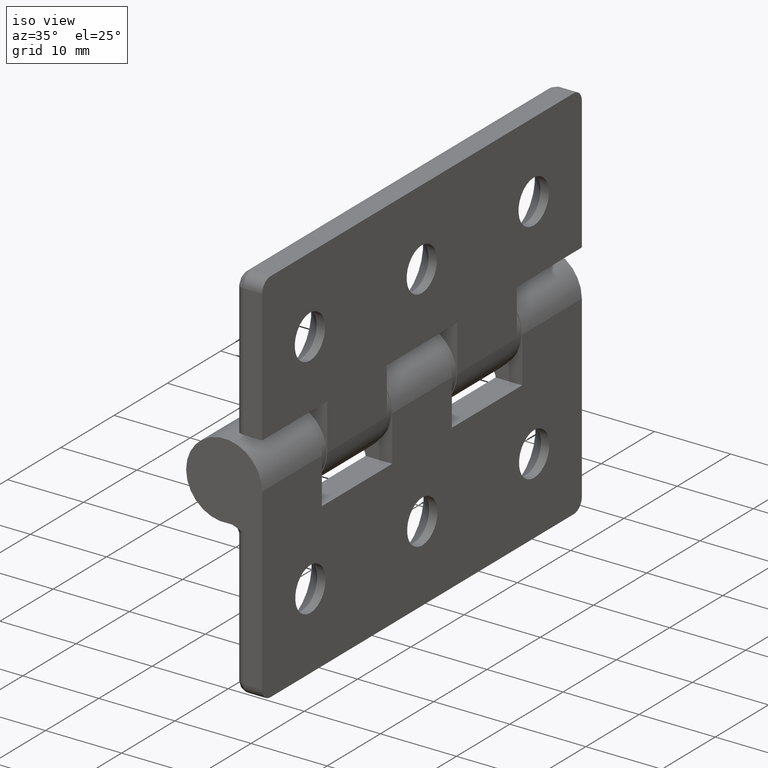
[diagram: clean part render]
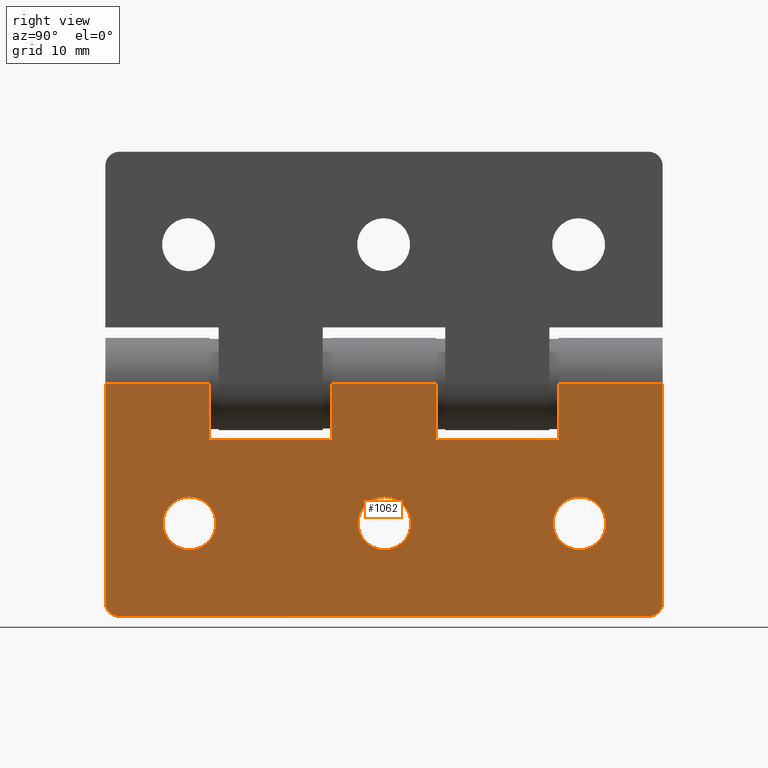
[diagram: tour spotlight — one face highlighted and labeled with its STEP entity id]
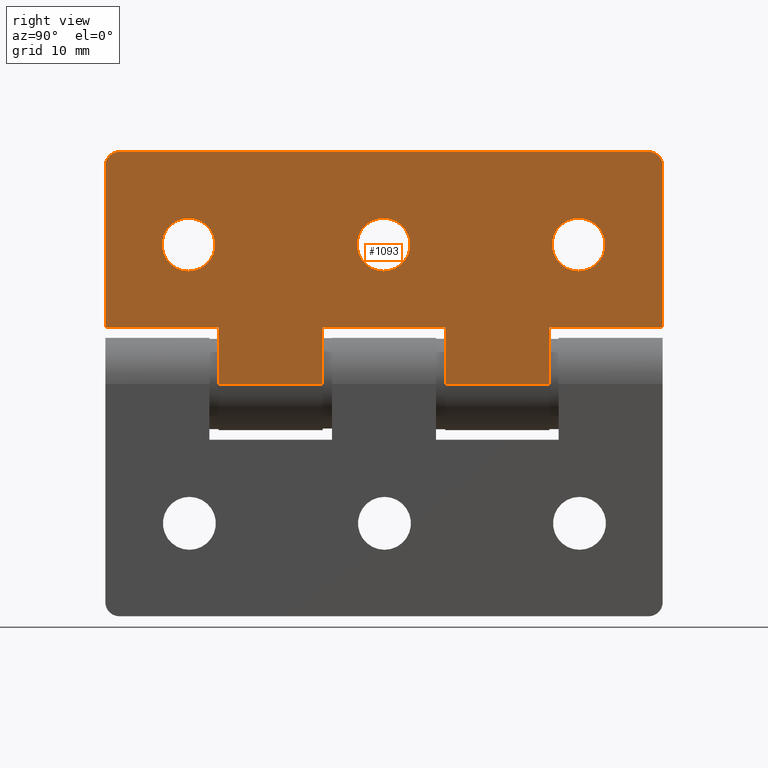
[diagram: tour spotlight — one face highlighted and labeled with its STEP entity id]
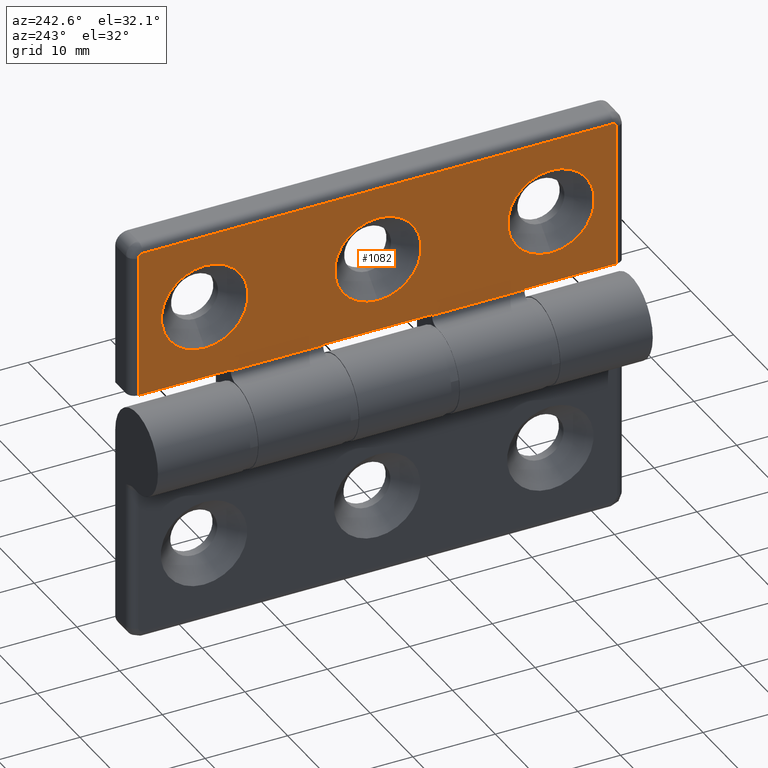
[diagram: tour spotlight — one face highlighted and labeled with its STEP entity id]
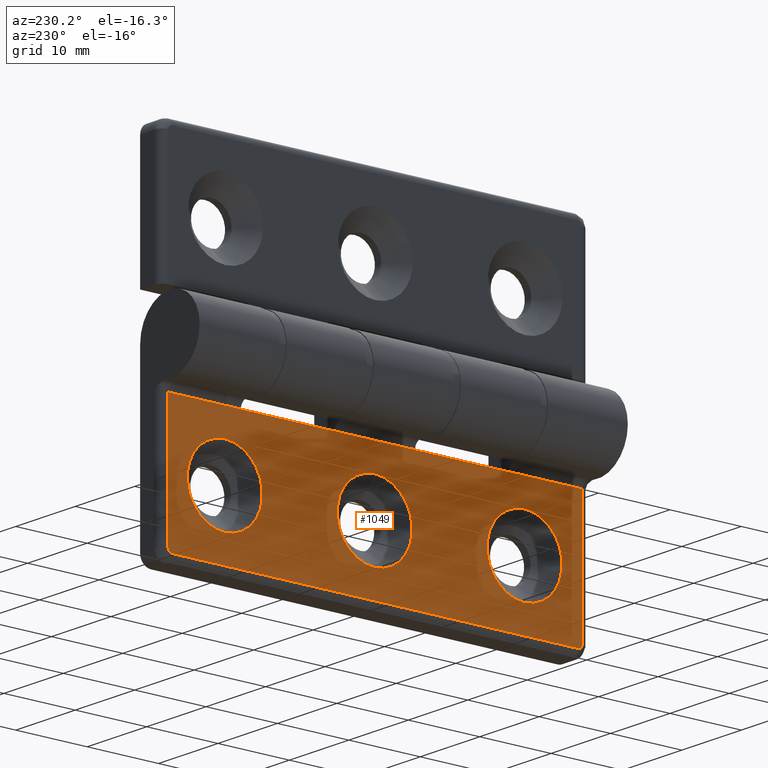
[diagram: tour spotlight — one face highlighted and labeled with its STEP entity id]
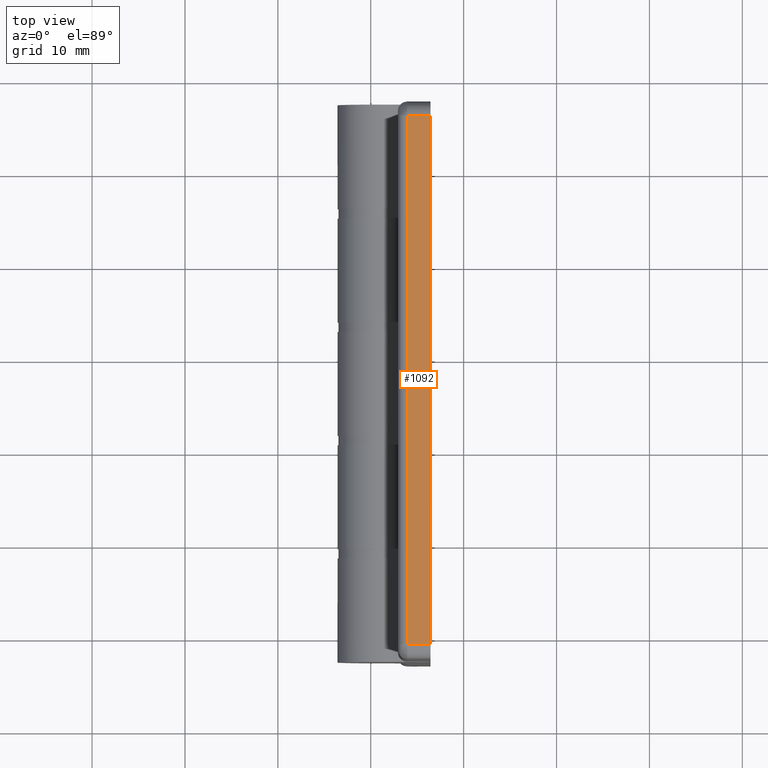
[diagram: tour spotlight — one face highlighted and labeled with its STEP entity id]
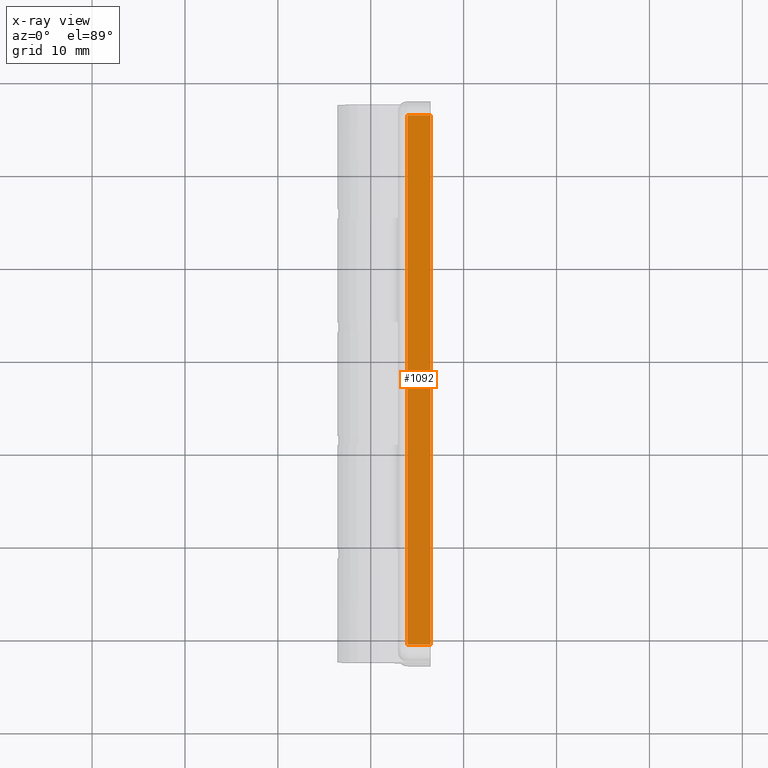
[diagram: x-ray of the same camera — body ghosted, this tour face saturated]
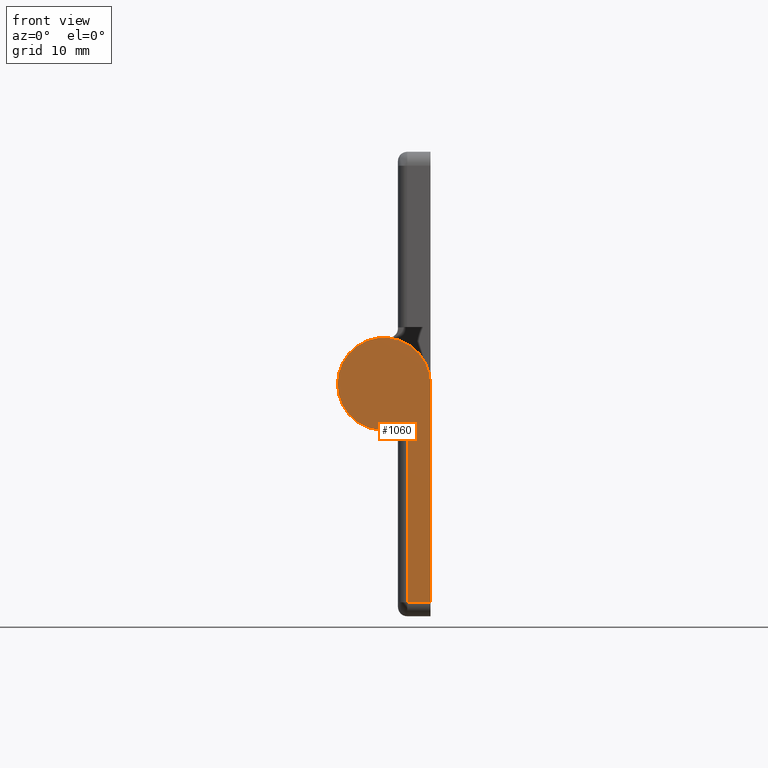
[diagram: tour spotlight — one face highlighted and labeled with its STEP entity id]
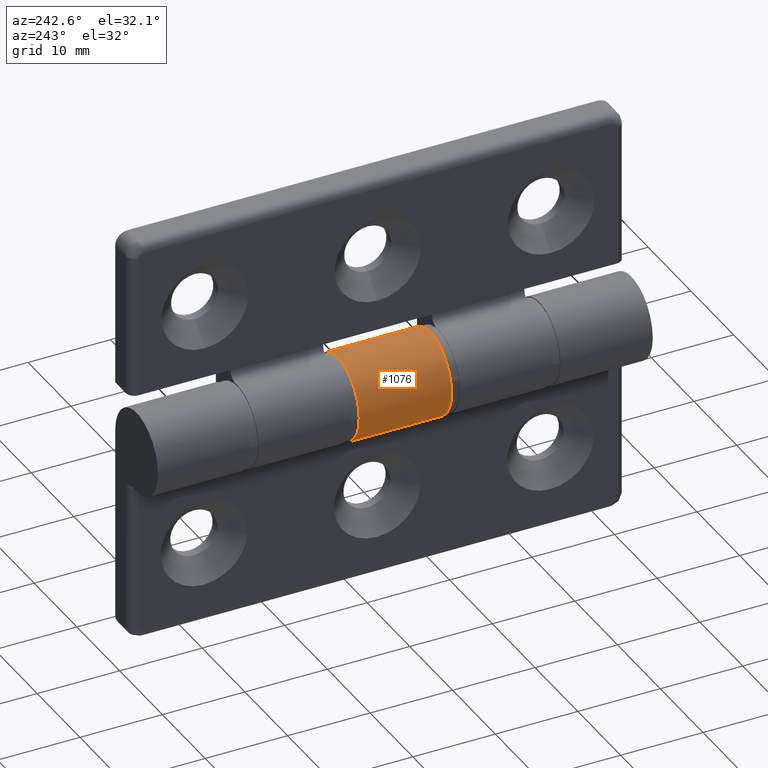
[diagram: tour spotlight — one face highlighted and labeled with its STEP entity id]
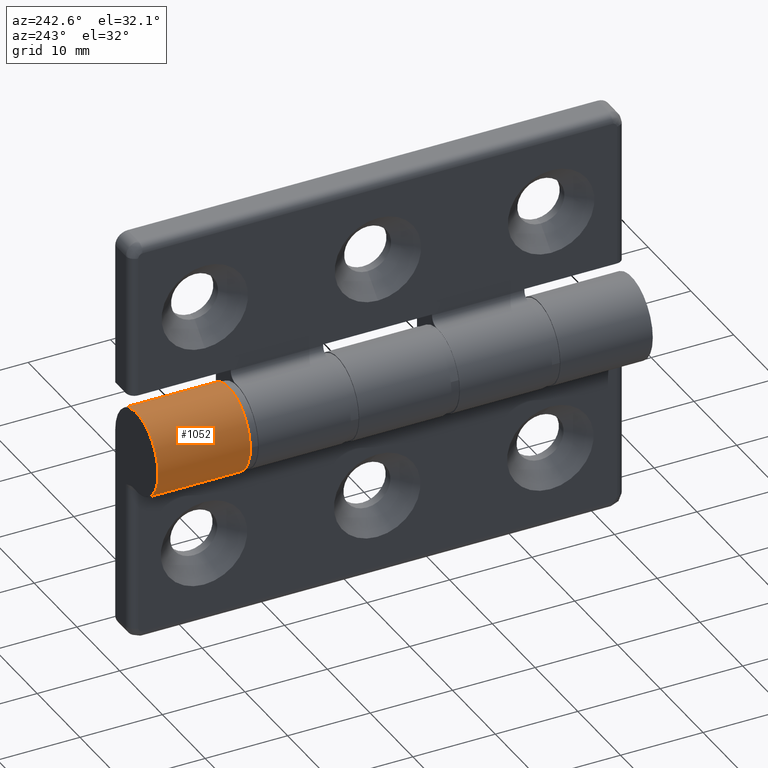
[diagram: tour spotlight — one face highlighted and labeled with its STEP entity id]
A machine part: a face-by-face anatomy tour. The part has 73 B-rep faces; the first image is the clean iso view, then the 8 largest visible faces are spotlighted one at a time (largest first), each with its STEP entity span.

Face 1 — right view, entity #1062. In plain terms, the highlighted planar face has unit normal (1, 0, -0).
Definition (entity closure, byte-faithful):
#60=FACE_BOUND('',#199,.T.);
#61=FACE_BOUND('',#200,.T.);
#62=FACE_BOUND('',#201,.T.);
#85=PLANE('',#1148);
#131=FACE_OUTER_BOUND('',#198,.T.);
#198=EDGE_LOOP('',(#808,#809,#810,#811,#812,#813,#814,#815,#816,#817,#818,
#819,#820,#821));
#199=EDGE_LOOP('',(#822));
#200=EDGE_LOOP('',(#823));
#201=EDGE_LOOP('',(#824));
#283=LINE('',#1757,#360);
#291=LINE('',#1809,#368);
#292=LINE('',#1812,#369);
#293=LINE('',#1814,#370);
#294=LINE('',#1816,#371);
#295=LINE('',#1818,#372);
#296=LINE('',#1820,#373);
#297=LINE('',#1822,#374);
#298=LINE('',#1824,#375);
#299=LINE('',#1826,#376);
#300=LINE('',#1828,#377);
#301=LINE('',#1829,#378);
#360=VECTOR('',#1292,11.2);
#368=VECTOR('',#1332,23.5);
#369=VECTOR('',#1337,57.);
#370=VECTOR('',#1340,23.5);
#371=VECTOR('',#1341,5.99999999999998);
#372=VECTOR('',#1342,13.2);
#373=VECTOR('',#1343,5.99999999999998);
#374=VECTOR('',#1344,11.2);
#375=VECTOR('',#1345,5.99999999999999);
#376=VECTOR('',#1346,13.2);
#377=VECTOR('',#1347,5.99999999999999);
#378=VECTOR('',#1348,11.2);
#438=CIRCLE('',#1137,1.5);
#442=CIRCLE('',#1144,1.5);
#444=CIRCLE('',#1149,2.85);
#445=CIRCLE('',#1150,2.85);
#446=CIRCLE('',#1151,2.85);
#510=VERTEX_POINT('',#1754);
#511=VERTEX_POINT('',#1756);
#515=VERTEX_POINT('',#1778);
#516=VERTEX_POINT('',#1779);
#519=VERTEX_POINT('',#1802);
#520=VERTEX_POINT('',#1803);
#521=VERTEX_POINT('',#1808);
#522=VERTEX_POINT('',#1815);
#523=VERTEX_POINT('',#1817);
#524=VERTEX_POINT('',#1819);
#525=VERTEX_POINT('',#1821);
#526=VERTEX_POINT('',#1823);
#527=VERTEX_POINT('',#1825);
#528=VERTEX_POINT('',#1827);
#529=VERTEX_POINT('',#1830);
#530=VERTEX_POINT('',#1832);
#531=VERTEX_POINT('',#1834);
#616=EDGE_CURVE('',#510,#511,#283,.T.);
#623=EDGE_CURVE('',#515,#516,#438,.T.);
#631=EDGE_CURVE('',#519,#520,#442,.T.);
#634=EDGE_CURVE('',#521,#516,#291,.T.);
#636=EDGE_CURVE('',#515,#520,#292,.T.);
#637=EDGE_CURVE('',#511,#519,#293,.T.);
#638=EDGE_CURVE('',#510,#522,#294,.T.);
#639=EDGE_CURVE('',#522,#523,#295,.T.);
#640=EDGE_CURVE('',#523,#524,#296,.T.);
#641=EDGE_CURVE('',#525,#524,#297,.T.);
#642=EDGE_CURVE('',#525,#526,#298,.T.);
#643=EDGE_CURVE('',#526,#527,#299,.T.);
#644=EDGE_CURVE('',#527,#528,#300,.T.);
#645=EDGE_CURVE('',#521,#528,#301,.T.);
#646=EDGE_CURVE('',#529,#529,#444,.T.);
#647=EDGE_CURVE('',#530,#530,#445,.T.);
#648=EDGE_CURVE('',#531,#531,#446,.T.);
#808=ORIENTED_EDGE('',*,*,#623,.F.);
#809=ORIENTED_EDGE('',*,*,#636,.T.);
#810=ORIENTED_EDGE('',*,*,#631,.F.);
#811=ORIENTED_EDGE('',*,*,#637,.F.);
#812=ORIENTED_EDGE('',*,*,#616,.F.);
#813=ORIENTED_EDGE('',*,*,#638,.T.);
#814=ORIENTED_EDGE('',*,*,#639,.T.);
#815=ORIENTED_EDGE('',*,*,#640,.T.);
#816=ORIENTED_EDGE('',*,*,#641,.F.);
#817=ORIENTED_EDGE('',*,*,#642,.T.);
#818=ORIENTED_EDGE('',*,*,#643,.T.);
#819=ORIENTED_EDGE('',*,*,#644,.T.);
#820=ORIENTED_EDGE('',*,*,#645,.F.);
#821=ORIENTED_EDGE('',*,*,#634,.T.);
#822=ORIENTED_EDGE('',*,*,#646,.T.);
#823=ORIENTED_EDGE('',*,*,#647,.T.);
#824=ORIENTED_EDGE('',*,*,#648,.T.);
#1062=ADVANCED_FACE('',(#131,#60,#61,#62),#85,.T.);
#1137=AXIS2_PLACEMENT_3D('',#1780,#1308,#1309);
#1144=AXIS2_PLACEMENT_3D('',#1804,#1326,#1327);
#1148=AXIS2_PLACEMENT_3D('',#1813,#1338,#1339);
#1149=AXIS2_PLACEMENT_3D('',#1831,#1349,#1350);
#1150=AXIS2_PLACEMENT_3D('',#1833,#1351,#1352);
#1151=AXIS2_PLACEMENT_3D('',#1835,#1353,#1354);
#1292=DIRECTION('',(0.,1.,0.));
#1308=DIRECTION('center_axis',(-1.,0.,4.88498130835069E-16));
#1309=DIRECTION('ref_axis',(0.,-0.707106781186549,-0.707106781186546));
#1326=DIRECTION('center_axis',(-1.,0.,4.88498130835069E-16));
#1327=DIRECTION('ref_axis',(0.,0.70710678118655,-0.707106781186545));
#1332=DIRECTION('',(-4.88498130835069E-16,0.,-1.));
#1337=DIRECTION('',(0.,1.,0.));
#1338=DIRECTION('center_axis',(1.,0.,-4.88498130835069E-16));
#1339=DIRECTION('ref_axis',(-5.32907051820075E-16,0.,-1.));
#1340=DIRECTION('',(-4.88498130835069E-16,0.,-1.));
#1341=DIRECTION('',(-4.88498130835069E-16,0.,-1.));
#1342=DIRECTION('',(0.,-1.,0.));
#1343=DIRECTION('',(4.88498130835069E-16,0.,1.));
#1344=DIRECTION('',(0.,1.,0.));
#1345=DIRECTION('',(-4.88498130835069E-16,1.26306652853828E-16,-1.));
#1346=DIRECTION('',(0.,-1.,0.));
#1347=DIRECTION('',(4.88498130835069E-16,-1.26306652853828E-16,1.));
#1348=DIRECTION('',(0.,1.,0.));
#1349=DIRECTION('center_axis',(-1.,0.,4.88498130835069E-16));
#1350=DIRECTION('ref_axis',(5.87376257845724E-16,0.,1.));
#1351=DIRECTION('center_axis',(-1.,0.,4.88498130835069E-16));
#1352=DIRECTION('ref_axis',(5.87376257845724E-16,0.,1.));
#1353=DIRECTION('center_axis',(-1.,0.,4.88498130835069E-16));
#1354=DIRECTION('ref_axis',(5.87376257845724E-16,0.,1.));
#1754=CARTESIAN_POINT('',(5.,48.8,-2.44249065417534E-15));
#1756=CARTESIAN_POINT('',(5.,60.,-1.66533453693773E-15));
#1757=CARTESIAN_POINT('',(5.,0.,-2.44249065417534E-15));
#1778=CARTESIAN_POINT('',(4.99999999999999,1.5,-25.));
#1779=CARTESIAN_POINT('',(4.99999999999999,0.,-23.5));
#1780=CARTESIAN_POINT('Origin',(5.,1.5,-23.5));
#1802=CARTESIAN_POINT('',(4.99999999999999,60.,-23.5));
#1803=CARTESIAN_POINT('',(4.99999999999999,58.5,-25.));
#1804=CARTESIAN_POINT('Origin',(5.,58.5,-23.5));
#1808=CARTESIAN_POINT('',(5.,0.,-1.53080849893419E-15));
#1809=CARTESIAN_POINT('',(5.,0.,-1.53080849893419E-15));
#1812=CARTESIAN_POINT('',(4.99999999999999,0.,-25.));
#1813=CARTESIAN_POINT('Origin',(5.,0.,-1.53080849893419E-15));
#1814=CARTESIAN_POINT('',(5.,60.,-1.53080849893419E-15));
#1815=CARTESIAN_POINT('',(5.,48.8,-5.99999999999998));
#1816=CARTESIAN_POINT('',(5.00000000000001,48.8,14.5798027980362));
#1817=CARTESIAN_POINT('',(5.,35.6,-5.99999999999999));
#1818=CARTESIAN_POINT('',(5.,18.3,-5.99999999999999));
#1819=CARTESIAN_POINT('',(5.,35.6,-2.44249065417534E-15));
#1820=CARTESIAN_POINT('',(5.,35.6,-2.99999999999999));
#1821=CARTESIAN_POINT('',(5.,24.4,-2.44249065417534E-15));
#1822=CARTESIAN_POINT('',(5.,0.,-2.44249065417534E-15));
#1823=CARTESIAN_POINT('',(5.,24.4,-5.99999999999999));
#1824=CARTESIAN_POINT('',(5.00000000000001,24.4,14.5798027980362));
#1825=CARTESIAN_POINT('',(5.,11.2,-5.99999999999999));
#1826=CARTESIAN_POINT('',(5.,12.2,-5.99999999999999));
#1827=CARTESIAN_POINT('',(5.,11.2,-2.44249065417534E-15));
#1828=CARTESIAN_POINT('',(5.,11.2,-2.99999999999999));
#1829=CARTESIAN_POINT('',(5.,0.,-2.44249065417534E-15));
#1830=CARTESIAN_POINT('',(4.99999999999999,51.0456915695693,-17.85));
#1831=CARTESIAN_POINT('Origin',(4.99999999999999,51.0456915695693,-15.));
#1832=CARTESIAN_POINT('',(4.99999999999999,9.05,-17.85));
#1833=CARTESIAN_POINT('Origin',(4.99999999999999,9.05,-15.));
#1834=CARTESIAN_POINT('',(4.99999999999999,30.05,-17.85));
#1835=CARTESIAN_POINT('Origin',(4.99999999999999,30.05,-15.));

Face 2 — right view, entity #1093. In plain terms, the highlighted planar face has unit normal (1, -0, -0).
Definition (entity closure, byte-faithful):
#73=FACE_BOUND('',#243,.T.);
#74=FACE_BOUND('',#244,.T.);
#75=FACE_BOUND('',#245,.T.);
#97=PLANE('',#1211);
#162=FACE_OUTER_BOUND('',#242,.T.);
#242=EDGE_LOOP('',(#944,#945,#946,#947,#948,#949,#950,#951,#952,#953,#954,
#955,#956,#957));
#243=EDGE_LOOP('',(#958));
#244=EDGE_LOOP('',(#959));
#245=EDGE_LOOP('',(#960));
#320=LINE('',#1924,#397);
#328=LINE('',#1977,#405);
#329=LINE('',#1980,#406);
#330=LINE('',#1982,#407);
#331=LINE('',#1983,#408);
#332=LINE('',#1985,#409);
#333=LINE('',#1987,#410);
#334=LINE('',#1989,#411);
#335=LINE('',#1991,#412);
#336=LINE('',#1993,#413);
#337=LINE('',#1995,#414);
#338=LINE('',#1996,#415);
#397=VECTOR('',#1457,11.2);
#405=VECTOR('',#1499,57.);
#406=VECTOR('',#1502,17.4);
#407=VECTOR('',#1503,12.2);
#408=VECTOR('',#1504,6.1);
#409=VECTOR('',#1505,6.1);
#410=VECTOR('',#1506,13.2);
#411=VECTOR('',#1507,6.1);
#412=VECTOR('',#1508,11.2);
#413=VECTOR('',#1509,6.10000000000001);
#414=VECTOR('',#1510,12.2);
#415=VECTOR('',#1511,17.4);
#469=CIRCLE('',#1199,1.5);
#475=CIRCLE('',#1209,1.5);
#476=CIRCLE('',#1212,2.85);
#477=CIRCLE('',#1213,2.85);
#478=CIRCLE('',#1214,2.85);
#558=VERTEX_POINT('',#1921);
#559=VERTEX_POINT('',#1923);
#562=VERTEX_POINT('',#1941);
#563=VERTEX_POINT('',#1942);
#568=VERTEX_POINT('',#1971);
#569=VERTEX_POINT('',#1972);
#570=VERTEX_POINT('',#1979);
#571=VERTEX_POINT('',#1981);
#572=VERTEX_POINT('',#1984);
#573=VERTEX_POINT('',#1986);
#574=VERTEX_POINT('',#1988);
#575=VERTEX_POINT('',#1990);
#576=VERTEX_POINT('',#1992);
#577=VERTEX_POINT('',#1994);
#578=VERTEX_POINT('',#1997);
#579=VERTEX_POINT('',#1999);
#580=VERTEX_POINT('',#2001);
#685=EDGE_CURVE('',#558,#559,#320,.T.);
#690=EDGE_CURVE('',#562,#563,#469,.T.);
#701=EDGE_CURVE('',#568,#569,#475,.T.);
#704=EDGE_CURVE('',#562,#569,#328,.T.);
#705=EDGE_CURVE('',#570,#568,#329,.T.);
#706=EDGE_CURVE('',#570,#571,#330,.T.);
#707=EDGE_CURVE('',#571,#559,#331,.T.);
#708=EDGE_CURVE('',#558,#572,#332,.T.);
#709=EDGE_CURVE('',#572,#573,#333,.T.);
#710=EDGE_CURVE('',#573,#574,#334,.T.);
#711=EDGE_CURVE('',#575,#574,#335,.T.);
#712=EDGE_CURVE('',#575,#576,#336,.T.);
#713=EDGE_CURVE('',#576,#577,#337,.T.);
#714=EDGE_CURVE('',#577,#563,#338,.T.);
#715=EDGE_CURVE('',#578,#578,#476,.T.);
#716=EDGE_CURVE('',#579,#579,#477,.T.);
#717=EDGE_CURVE('',#580,#580,#478,.T.);
#944=ORIENTED_EDGE('',*,*,#690,.F.);
#945=ORIENTED_EDGE('',*,*,#704,.T.);
#946=ORIENTED_EDGE('',*,*,#701,.F.);
#947=ORIENTED_EDGE('',*,*,#705,.F.);
#948=ORIENTED_EDGE('',*,*,#706,.T.);
#949=ORIENTED_EDGE('',*,*,#707,.T.);
#950=ORIENTED_EDGE('',*,*,#685,.F.);
#951=ORIENTED_EDGE('',*,*,#708,.T.);
#952=ORIENTED_EDGE('',*,*,#709,.T.);
#953=ORIENTED_EDGE('',*,*,#710,.T.);
#954=ORIENTED_EDGE('',*,*,#711,.F.);
#955=ORIENTED_EDGE('',*,*,#712,.T.);
#956=ORIENTED_EDGE('',*,*,#713,.T.);
#957=ORIENTED_EDGE('',*,*,#714,.T.);
#958=ORIENTED_EDGE('',*,*,#715,.T.);
#959=ORIENTED_EDGE('',*,*,#716,.T.);
#960=ORIENTED_EDGE('',*,*,#717,.T.);
#1093=ADVANCED_FACE('',(#162,#73,#74,#75),#97,.T.);
#1199=AXIS2_PLACEMENT_3D('',#1943,#1468,#1469);
#1209=AXIS2_PLACEMENT_3D('',#1973,#1493,#1494);
#1211=AXIS2_PLACEMENT_3D('',#1978,#1500,#1501);
#1212=AXIS2_PLACEMENT_3D('',#1998,#1512,#1513);
#1213=AXIS2_PLACEMENT_3D('',#2000,#1514,#1515);
#1214=AXIS2_PLACEMENT_3D('',#2002,#1516,#1517);
#1457=DIRECTION('',(0.,1.,0.));
#1468=DIRECTION('center_axis',(-1.,0.,4.88498130835069E-16));
#1469=DIRECTION('ref_axis',(0.,-0.707106781186549,-0.707106781186546));
#1493=DIRECTION('center_axis',(-1.,0.,4.88498130835069E-16));
#1494=DIRECTION('ref_axis',(0.,0.70710678118655,-0.707106781186545));
#1499=DIRECTION('',(0.,1.,0.));
#1500=DIRECTION('center_axis',(1.,0.,-4.88498130835069E-16));
#1501=DIRECTION('ref_axis',(-5.32907051820075E-16,0.,-1.));
#1502=DIRECTION('',(-4.88498130835069E-16,0.,-1.));
#1503=DIRECTION('',(2.16936748935779E-30,-1.,4.44089209850064E-15));
#1504=DIRECTION('',(4.88498130835069E-16,0.,1.));
#1505=DIRECTION('',(-4.88498130835069E-16,-2.90621177825924E-16,-1.));
#1506=DIRECTION('',(4.33873497871558E-30,-1.,8.88178419700128E-15));
#1507=DIRECTION('',(4.88498130835069E-16,0.,1.));
#1508=DIRECTION('',(0.,1.,0.));
#1509=DIRECTION('',(-4.88498130835069E-16,1.45310588912962E-16,-1.));
#1510=DIRECTION('',(7.05044434041276E-30,-1.,1.4432899320127E-14));
#1511=DIRECTION('',(-4.88498130835069E-16,0.,-1.));
#1512=DIRECTION('center_axis',(-1.,0.,4.88498130835069E-16));
#1513=DIRECTION('ref_axis',(5.87376257845724E-16,2.71716102324369E-33,1.));
#1514=DIRECTION('center_axis',(-1.,0.,4.88498130835069E-16));
#1515=DIRECTION('ref_axis',(5.87376257845724E-16,2.71716102324369E-33,1.));
#1516=DIRECTION('center_axis',(-1.,0.,4.88498130835069E-16));
#1517=DIRECTION('ref_axis',(5.87376257845724E-16,2.71716102324369E-33,1.));
#1921=CARTESIAN_POINT('',(5.,36.6,-2.44249065417534E-15));
#1923=CARTESIAN_POINT('',(5.,47.8,-2.44249065417534E-15));
#1924=CARTESIAN_POINT('',(5.,0.,-2.44249065417534E-15));
#1941=CARTESIAN_POINT('',(4.99999999999999,1.5,-25.));
#1942=CARTESIAN_POINT('',(4.99999999999999,0.,-23.5));
#1943=CARTESIAN_POINT('Origin',(5.,1.5,-23.5));
#1971=CARTESIAN_POINT('',(4.99999999999999,60.,-23.5));
#1972=CARTESIAN_POINT('',(4.99999999999999,58.5,-25.));
#1973=CARTESIAN_POINT('Origin',(5.,58.5,-23.5));
#1977=CARTESIAN_POINT('',(4.99999999999999,0.,-25.));
#1978=CARTESIAN_POINT('Origin',(5.,0.,-1.53080849893419E-15));
#1979=CARTESIAN_POINT('',(5.,60.,-6.1));
#1980=CARTESIAN_POINT('',(5.,60.,-1.53080849893419E-15));
#1981=CARTESIAN_POINT('',(5.,47.8,-6.1));
#1982=CARTESIAN_POINT('',(5.,24.4,-6.09999999999989));
#1983=CARTESIAN_POINT('',(5.,47.8,-3.05));
#1984=CARTESIAN_POINT('',(5.,36.6,-6.1));
#1985=CARTESIAN_POINT('',(5.00000000000001,36.6,12.2306899060901));
#1986=CARTESIAN_POINT('',(5.,23.4,-6.1));
#1987=CARTESIAN_POINT('',(5.,12.2,-6.0999999999999));
#1988=CARTESIAN_POINT('',(5.,23.4,-2.44249065417534E-15));
#1989=CARTESIAN_POINT('',(5.,23.4,-3.05));
#1990=CARTESIAN_POINT('',(5.,12.2,-2.44249065417534E-15));
#1991=CARTESIAN_POINT('',(5.,0.,-2.44249065417534E-15));
#1992=CARTESIAN_POINT('',(5.,12.2,-6.10000000000001));
#1993=CARTESIAN_POINT('',(5.00000000000001,12.2,12.2306899060901));
#1994=CARTESIAN_POINT('',(5.,0.,-6.10000000000002));
#1995=CARTESIAN_POINT('',(5.,6.09999999999996,-6.09999999999992));
#1996=CARTESIAN_POINT('',(5.,0.,-1.53080849893419E-15));
#1997=CARTESIAN_POINT('',(4.99999999999999,9.05,-17.85));
#1998=CARTESIAN_POINT('Origin',(4.99999999999999,9.05,-15.));
#1999=CARTESIAN_POINT('',(4.99999999999999,51.0414268214431,-17.85));
#2000=CARTESIAN_POINT('Origin',(4.99999999999999,51.0414268214431,-15.));
#2001=CARTESIAN_POINT('',(4.99999999999999,30.0414268214431,-17.85));
#2002=CARTESIAN_POINT('Origin',(4.99999999999999,30.0414268214431,-15.));

Face 3 — auxiliary view, entity #1082. In plain terms, the highlighted planar face has unit normal (-1, 0, 0).
Definition (entity closure, byte-faithful):
#70=FACE_BOUND('',#229,.T.);
#71=FACE_BOUND('',#230,.T.);
#72=FACE_BOUND('',#231,.T.);
#95=PLANE('',#1183);
#151=FACE_OUTER_BOUND('',#228,.T.);
#228=EDGE_LOOP('',(#887,#888,#889,#890,#891,#892,#893,#894,#895,#896,#897,
#898,#899,#900));
#229=EDGE_LOOP('',(#901));
#230=EDGE_LOOP('',(#902));
#231=EDGE_LOOP('',(#903));
#306=LINE('',#1878,#383);
#308=LINE('',#1884,#385);
#309=LINE('',#1886,#386);
#310=LINE('',#1888,#387);
#311=LINE('',#1890,#388);
#312=LINE('',#1892,#389);
#313=LINE('',#1894,#390);
#314=LINE('',#1896,#391);
#315=LINE('',#1900,#392);
#316=LINE('',#1904,#393);
#317=LINE('',#1906,#394);
#318=LINE('',#1907,#395);
#383=VECTOR('',#1419,11.2);
#385=VECTOR('',#1425,0.120869628449295);
#386=VECTOR('',#1426,13.2);
#387=VECTOR('',#1427,0.120869628449302);
#388=VECTOR('',#1428,11.2);
#389=VECTOR('',#1429,0.120869628449295);
#390=VECTOR('',#1430,11.2);
#391=VECTOR('',#1431,17.4);
#392=VECTOR('',#1434,57.);
#393=VECTOR('',#1437,17.4000000000002);
#394=VECTOR('',#1438,11.2);
#395=VECTOR('',#1439,0.120869628449309);
#457=CIRCLE('',#1184,0.500000000000003);
#458=CIRCLE('',#1185,0.5);
#459=CIRCLE('',#1186,5.25);
#460=CIRCLE('',#1187,5.25);
#461=CIRCLE('',#1188,5.25);
#538=VERTEX_POINT('',#1875);
#539=VERTEX_POINT('',#1877);
#541=VERTEX_POINT('',#1883);
#542=VERTEX_POINT('',#1885);
#543=VERTEX_POINT('',#1887);
#544=VERTEX_POINT('',#1889);
#545=VERTEX_POINT('',#1891);
#546=VERTEX_POINT('',#1893);
#547=VERTEX_POINT('',#1895);
#548=VERTEX_POINT('',#1897);
#549=VERTEX_POINT('',#1899);
#550=VERTEX_POINT('',#1901);
#551=VERTEX_POINT('',#1903);
#552=VERTEX_POINT('',#1905);
#553=VERTEX_POINT('',#1908);
#554=VERTEX_POINT('',#1910);
#555=VERTEX_POINT('',#1912);
#662=EDGE_CURVE('',#538,#539,#306,.T.);
#665=EDGE_CURVE('',#538,#541,#308,.T.);
#666=EDGE_CURVE('',#541,#542,#309,.T.);
#667=EDGE_CURVE('',#542,#543,#310,.T.);
#668=EDGE_CURVE('',#544,#543,#311,.T.);
#669=EDGE_CURVE('',#544,#545,#312,.T.);
#670=EDGE_CURVE('',#545,#546,#313,.T.);
#671=EDGE_CURVE('',#547,#546,#314,.T.);
#672=EDGE_CURVE('',#548,#547,#457,.T.);
#673=EDGE_CURVE('',#549,#548,#315,.T.);
#674=EDGE_CURVE('',#550,#549,#458,.T.);
#675=EDGE_CURVE('',#551,#550,#316,.T.);
#676=EDGE_CURVE('',#551,#552,#317,.T.);
#677=EDGE_CURVE('',#552,#539,#318,.T.);
#678=EDGE_CURVE('',#553,#553,#459,.T.);
#679=EDGE_CURVE('',#554,#554,#460,.T.);
#680=EDGE_CURVE('',#555,#555,#461,.T.);
#887=ORIENTED_EDGE('',*,*,#662,.F.);
#888=ORIENTED_EDGE('',*,*,#665,.T.);
#889=ORIENTED_EDGE('',*,*,#666,.T.);
#890=ORIENTED_EDGE('',*,*,#667,.T.);
#891=ORIENTED_EDGE('',*,*,#668,.F.);
#892=ORIENTED_EDGE('',*,*,#669,.T.);
#893=ORIENTED_EDGE('',*,*,#670,.T.);
#894=ORIENTED_EDGE('',*,*,#671,.F.);
#895=ORIENTED_EDGE('',*,*,#672,.F.);
#896=ORIENTED_EDGE('',*,*,#673,.F.);
#897=ORIENTED_EDGE('',*,*,#674,.F.);
#898=ORIENTED_EDGE('',*,*,#675,.F.);
#899=ORIENTED_EDGE('',*,*,#676,.T.);
#900=ORIENTED_EDGE('',*,*,#677,.T.);
#901=ORIENTED_EDGE('',*,*,#678,.T.);
#902=ORIENTED_EDGE('',*,*,#679,.T.);
#903=ORIENTED_EDGE('',*,*,#680,.T.);
#1082=ADVANCED_FACE('',(#151,#70,#71,#72),#95,.T.);
#1183=AXIS2_PLACEMENT_3D('',#1882,#1423,#1424);
#1184=AXIS2_PLACEMENT_3D('',#1898,#1432,#1433);
#1185=AXIS2_PLACEMENT_3D('',#1902,#1435,#1436);
#1186=AXIS2_PLACEMENT_3D('',#1909,#1440,#1441);
#1187=AXIS2_PLACEMENT_3D('',#1911,#1442,#1443);
#1188=AXIS2_PLACEMENT_3D('',#1913,#1444,#1445);
#1419=DIRECTION('',(0.,-1.,0.));
#1423=DIRECTION('center_axis',(-1.,0.,5.87376257845724E-16));
#1424=DIRECTION('ref_axis',(5.77315972805081E-16,0.,1.));
#1425=DIRECTION('',(-5.87376257845724E-16,0.,-1.));
#1426=DIRECTION('',(-5.2169491646279E-30,1.,-8.88178419700128E-15));
#1427=DIRECTION('',(5.87376257845724E-16,2.90621177825924E-16,1.));
#1428=DIRECTION('',(0.,-1.,0.));
#1429=DIRECTION('',(-5.87376257845724E-16,0.,-1.));
#1430=DIRECTION('',(-2.60847458231395E-30,1.,-4.44089209850064E-15));
#1431=DIRECTION('',(5.87376257845724E-16,0.,1.));
#1432=DIRECTION('center_axis',(1.,0.,-5.87376257845724E-16));
#1433=DIRECTION('ref_axis',(0.,0.707106781186554,-0.707106781186541));
#1434=DIRECTION('',(0.,1.,0.));
#1435=DIRECTION('center_axis',(1.,0.,-5.87376257845724E-16));
#1436=DIRECTION('ref_axis',(0.,-0.707106781186549,-0.707106781186546));
#1437=DIRECTION('',(-5.87376257845724E-16,0.,-1.));
#1438=DIRECTION('',(-8.47754239252027E-30,1.,-1.4432899320127E-14));
#1439=DIRECTION('',(5.87376257845724E-16,-1.45310588912962E-16,1.));
#1440=DIRECTION('center_axis',(1.,0.,-5.87376257845724E-16));
#1441=DIRECTION('ref_axis',(5.87376257845724E-16,2.71716102324369E-33,1.));
#1442=DIRECTION('center_axis',(1.,0.,-5.87376257845724E-16));
#1443=DIRECTION('ref_axis',(5.87376257845724E-16,2.71716102324369E-33,1.));
#1444=DIRECTION('center_axis',(1.,0.,-5.87376257845724E-16));
#1445=DIRECTION('ref_axis',(5.87376257845724E-16,2.71716102324369E-33,1.));
#1875=CARTESIAN_POINT('',(1.5,23.4,-5.9791303715507));
#1877=CARTESIAN_POINT('',(1.5,12.2,-5.9791303715507));
#1878=CARTESIAN_POINT('',(1.5,0.,-5.9791303715507));
#1882=CARTESIAN_POINT('Origin',(1.49999999999998,0.,-25.));
#1883=CARTESIAN_POINT('',(1.5,23.4,-6.1));
#1884=CARTESIAN_POINT('',(1.49999999999999,23.4,-15.55));
#1885=CARTESIAN_POINT('',(1.5,36.6,-6.1));
#1886=CARTESIAN_POINT('',(1.5,12.2000000000001,-6.0999999999999));
#1887=CARTESIAN_POINT('',(1.5,36.6,-5.9791303715507));
#1888=CARTESIAN_POINT('',(1.5,36.6,-0.269310093909876));
#1889=CARTESIAN_POINT('',(1.5,47.8,-5.9791303715507));
#1890=CARTESIAN_POINT('',(1.5,0.,-5.9791303715507));
#1891=CARTESIAN_POINT('',(1.5,47.8,-6.1));
#1892=CARTESIAN_POINT('',(1.49999999999999,47.8,-15.55));
#1893=CARTESIAN_POINT('',(1.5,59.,-6.10000000000005));
#1894=CARTESIAN_POINT('',(1.5,24.4,-6.09999999999989));
#1895=CARTESIAN_POINT('',(1.49999999999999,59.,-23.5));
#1896=CARTESIAN_POINT('',(1.49999999999999,59.,-17.9587937600321));
#1897=CARTESIAN_POINT('',(1.49999999999999,58.5,-24.));
#1898=CARTESIAN_POINT('Origin',(1.49999999999999,58.5,-23.5));
#1899=CARTESIAN_POINT('',(1.49999999999999,1.5,-24.));
#1900=CARTESIAN_POINT('',(1.49999999999999,0.,-24.));
#1901=CARTESIAN_POINT('',(1.49999999999999,1.,-23.5));
#1902=CARTESIAN_POINT('Origin',(1.49999999999999,1.5,-23.5));
#1903=CARTESIAN_POINT('',(1.5,1.,-6.09999999999985));
#1904=CARTESIAN_POINT('',(1.49999999999999,1.,-12.4999999977609));
#1905=CARTESIAN_POINT('',(1.5,12.2,-6.10000000000001));
#1906=CARTESIAN_POINT('',(1.5,6.10000000000014,-6.09999999999992));
#1907=CARTESIAN_POINT('',(1.5,12.2,-0.269310093909869));
#1908=CARTESIAN_POINT('',(1.49999999999999,9.05,-9.75));
#1909=CARTESIAN_POINT('Origin',(1.49999999999999,9.05,-15.));
#1910=CARTESIAN_POINT('',(1.49999999999999,51.0414268214431,-9.75));
#1911=CARTESIAN_POINT('Origin',(1.49999999999999,51.0414268214431,-15.));
#1912=CARTESIAN_POINT('',(1.49999999999999,30.0414268214431,-9.75));
#1913=CARTESIAN_POINT('Origin',(1.49999999999999,30.0414268214431,-15.));

Face 4 — auxiliary view, entity #1049. In plain terms, the highlighted planar face has unit normal (-1, 0, 0).
Definition (entity closure, byte-faithful):
#57=FACE_BOUND('',#183,.T.);
#58=FACE_BOUND('',#184,.T.);
#59=FACE_BOUND('',#185,.T.);
#82=PLANE('',#1119);
#118=FACE_OUTER_BOUND('',#182,.T.);
#182=EDGE_LOOP('',(#741,#742,#743,#744,#745,#746,#747,#748,#749,#750,#751,
#752,#753,#754));
#183=EDGE_LOOP('',(#755));
#184=EDGE_LOOP('',(#756));
#185=EDGE_LOOP('',(#757));
#269=LINE('',#1589,#346);
#270=LINE('',#1655,#347);
#272=LINE('',#1661,#349);
#273=LINE('',#1663,#350);
#274=LINE('',#1665,#351);
#275=LINE('',#1667,#352);
#276=LINE('',#1669,#353);
#277=LINE('',#1671,#354);
#278=LINE('',#1673,#355);
#279=LINE('',#1675,#356);
#280=LINE('',#1677,#357);
#281=LINE('',#1681,#358);
#346=VECTOR('',#1252,10.2);
#347=VECTOR('',#1255,17.5208696284493);
#349=VECTOR('',#1261,0.020869628449286);
#350=VECTOR('',#1262,13.2);
#351=VECTOR('',#1263,0.0208696284492849);
#352=VECTOR('',#1264,11.2);
#353=VECTOR('',#1265,0.0208696284492826);
#354=VECTOR('',#1266,13.2);
#355=VECTOR('',#1267,0.0208696284492804);
#356=VECTOR('',#1268,10.2);
#357=VECTOR('',#1269,17.5208696284493);
#358=VECTOR('',#1272,57.);
#425=CIRCLE('',#1120,0.500000000000003);
#426=CIRCLE('',#1121,0.5);
#427=CIRCLE('',#1122,5.25);
#428=CIRCLE('',#1123,5.25);
#429=CIRCLE('',#1124,5.25);
#484=VERTEX_POINT('',#1582);
#487=VERTEX_POINT('',#1587);
#490=VERTEX_POINT('',#1654);
#492=VERTEX_POINT('',#1660);
#493=VERTEX_POINT('',#1662);
#494=VERTEX_POINT('',#1664);
#495=VERTEX_POINT('',#1666);
#496=VERTEX_POINT('',#1668);
#497=VERTEX_POINT('',#1670);
#498=VERTEX_POINT('',#1672);
#499=VERTEX_POINT('',#1674);
#500=VERTEX_POINT('',#1676);
#501=VERTEX_POINT('',#1678);
#502=VERTEX_POINT('',#1680);
#503=VERTEX_POINT('',#1683);
#504=VERTEX_POINT('',#1685);
#505=VERTEX_POINT('',#1687);
#587=EDGE_CURVE('',#487,#484,#269,.T.);
#591=EDGE_CURVE('',#484,#490,#270,.T.);
#594=EDGE_CURVE('',#487,#492,#272,.T.);
#595=EDGE_CURVE('',#492,#493,#273,.T.);
#596=EDGE_CURVE('',#493,#494,#274,.T.);
#597=EDGE_CURVE('',#495,#494,#275,.T.);
#598=EDGE_CURVE('',#495,#496,#276,.T.);
#599=EDGE_CURVE('',#496,#497,#277,.T.);
#600=EDGE_CURVE('',#497,#498,#278,.T.);
#601=EDGE_CURVE('',#499,#498,#279,.T.);
#602=EDGE_CURVE('',#500,#499,#280,.T.);
#603=EDGE_CURVE('',#501,#500,#425,.T.);
#604=EDGE_CURVE('',#502,#501,#281,.T.);
#605=EDGE_CURVE('',#490,#502,#426,.T.);
#606=EDGE_CURVE('',#503,#503,#427,.T.);
#607=EDGE_CURVE('',#504,#504,#428,.T.);
#608=EDGE_CURVE('',#505,#505,#429,.T.);
#741=ORIENTED_EDGE('',*,*,#587,.F.);
#742=ORIENTED_EDGE('',*,*,#594,.T.);
#743=ORIENTED_EDGE('',*,*,#595,.T.);
#744=ORIENTED_EDGE('',*,*,#596,.T.);
#745=ORIENTED_EDGE('',*,*,#597,.F.);
#746=ORIENTED_EDGE('',*,*,#598,.T.);
#747=ORIENTED_EDGE('',*,*,#599,.T.);
#748=ORIENTED_EDGE('',*,*,#600,.T.);
#749=ORIENTED_EDGE('',*,*,#601,.F.);
#750=ORIENTED_EDGE('',*,*,#602,.F.);
#751=ORIENTED_EDGE('',*,*,#603,.F.);
#752=ORIENTED_EDGE('',*,*,#604,.F.);
#753=ORIENTED_EDGE('',*,*,#605,.F.);
#754=ORIENTED_EDGE('',*,*,#591,.F.);
#755=ORIENTED_EDGE('',*,*,#606,.T.);
#756=ORIENTED_EDGE('',*,*,#607,.T.);
#757=ORIENTED_EDGE('',*,*,#608,.T.);
#1049=ADVANCED_FACE('',(#118,#57,#58,#59),#82,.T.);
#1119=AXIS2_PLACEMENT_3D('',#1659,#1259,#1260);
#1120=AXIS2_PLACEMENT_3D('',#1679,#1270,#1271);
#1121=AXIS2_PLACEMENT_3D('',#1682,#1273,#1274);
#1122=AXIS2_PLACEMENT_3D('',#1684,#1275,#1276);
#1123=AXIS2_PLACEMENT_3D('',#1686,#1277,#1278);
#1124=AXIS2_PLACEMENT_3D('',#1688,#1279,#1280);
#1252=DIRECTION('',(0.,-1.,0.));
#1255=DIRECTION('',(-5.87376257845724E-16,0.,-1.));
#1259=DIRECTION('center_axis',(-1.,0.,5.87376257845724E-16));
#1260=DIRECTION('ref_axis',(5.77315972805081E-16,0.,1.));
#1261=DIRECTION('',(-5.87376257845724E-16,1.26306652853828E-16,-1.));
#1262=DIRECTION('',(0.,1.,0.));
#1263=DIRECTION('',(5.87376257845724E-16,-1.26306652853828E-16,1.));
#1264=DIRECTION('',(0.,-1.,0.));
#1265=DIRECTION('',(-5.87376257845724E-16,0.,-1.));
#1266=DIRECTION('',(0.,1.,0.));
#1267=DIRECTION('',(5.87376257845724E-16,0.,1.));
#1268=DIRECTION('',(0.,-1.,0.));
#1269=DIRECTION('',(5.87376257845724E-16,0.,1.));
#1270=DIRECTION('center_axis',(1.,0.,-5.87376257845724E-16));
#1271=DIRECTION('ref_axis',(0.,0.707106781186554,-0.707106781186541));
#1272=DIRECTION('',(0.,1.,0.));
#1273=DIRECTION('center_axis',(1.,0.,-5.87376257845724E-16));
#1274=DIRECTION('ref_axis',(0.,-0.707106781186549,-0.707106781186546));
#1275=DIRECTION('center_axis',(1.,0.,-5.87376257845724E-16));
#1276=DIRECTION('ref_axis',(5.87376257845724E-16,0.,1.));
#1277=DIRECTION('center_axis',(1.,0.,-5.87376257845724E-16));
#1278=DIRECTION('ref_axis',(5.87376257845724E-16,0.,1.));
#1279=DIRECTION('center_axis',(1.,0.,-5.87376257845724E-16));
#1280=DIRECTION('ref_axis',(5.87376257845724E-16,0.,1.));
#1582=CARTESIAN_POINT('',(1.5,1.,-5.9791303715507));
#1587=CARTESIAN_POINT('',(1.5,11.2,-5.9791303715507));
#1589=CARTESIAN_POINT('',(1.5,0.,-5.9791303715507));
#1654=CARTESIAN_POINT('',(1.49999999999999,1.,-23.5));
#1655=CARTESIAN_POINT('',(1.49999999999999,1.,-12.4999999977609));
#1659=CARTESIAN_POINT('Origin',(1.49999999999998,0.,-25.));
#1660=CARTESIAN_POINT('',(1.5,11.2,-5.99999999999999));
#1661=CARTESIAN_POINT('',(1.49999999999999,11.2,-15.5));
#1662=CARTESIAN_POINT('',(1.5,24.4,-5.99999999999999));
#1663=CARTESIAN_POINT('',(1.5,12.2,-5.99999999999999));
#1664=CARTESIAN_POINT('',(1.5,24.4,-5.9791303715507));
#1665=CARTESIAN_POINT('',(1.5,24.4,2.07980279803624));
#1666=CARTESIAN_POINT('',(1.5,35.6,-5.9791303715507));
#1667=CARTESIAN_POINT('',(1.5,0.,-5.9791303715507));
#1668=CARTESIAN_POINT('',(1.5,35.6,-5.99999999999998));
#1669=CARTESIAN_POINT('',(1.49999999999999,35.6,-15.5));
#1670=CARTESIAN_POINT('',(1.5,48.8,-5.99999999999998));
#1671=CARTESIAN_POINT('',(1.5,18.3,-5.99999999999998));
#1672=CARTESIAN_POINT('',(1.5,48.8,-5.9791303715507));
#1673=CARTESIAN_POINT('',(1.5,48.8,2.07980279803624));
#1674=CARTESIAN_POINT('',(1.5,59.,-5.9791303715507));
#1675=CARTESIAN_POINT('',(1.5,0.,-5.9791303715507));
#1676=CARTESIAN_POINT('',(1.49999999999999,59.,-23.5));
#1677=CARTESIAN_POINT('',(1.49999999999999,59.,-17.9587937600321));
#1678=CARTESIAN_POINT('',(1.49999999999999,58.5,-24.));
#1679=CARTESIAN_POINT('Origin',(1.49999999999999,58.5,-23.5));
#1680=CARTESIAN_POINT('',(1.49999999999999,1.5,-24.));
#1681=CARTESIAN_POINT('',(1.49999999999999,0.,-24.));
#1682=CARTESIAN_POINT('Origin',(1.49999999999999,1.5,-23.5));
#1683=CARTESIAN_POINT('',(1.49999999999999,30.05,-9.75));
#1684=CARTESIAN_POINT('Origin',(1.49999999999999,30.05,-15.));
#1685=CARTESIAN_POINT('',(1.49999999999999,9.05,-9.75));
#1686=CARTESIAN_POINT('Origin',(1.49999999999999,9.05,-15.));
#1687=CARTESIAN_POINT('',(1.49999999999999,51.0456915695693,-9.75));
#1688=CARTESIAN_POINT('Origin',(1.49999999999999,51.0456915695693,-15.));

Face 5 — top view, entity #1092. An x-ray twin of the same camera follows (body ghosted, this face saturated) — the face is partly hidden behind the body. In plain terms, the highlighted planar face has unit normal (0, 0, 1).
Definition (entity closure, byte-faithful):
#96=PLANE('',#1210);
#161=FACE_OUTER_BOUND('',#241,.T.);
#241=EDGE_LOOP('',(#940,#941,#942,#943));
#322=LINE('',#1945,#399);
#324=LINE('',#1965,#401);
#326=LINE('',#1974,#403);
#328=LINE('',#1977,#405);
#399=VECTOR('',#1471,2.5);
#401=VECTOR('',#1485,57.);
#403=VECTOR('',#1495,2.5);
#405=VECTOR('',#1499,57.);
#560=VERTEX_POINT('',#1935);
#562=VERTEX_POINT('',#1941);
#565=VERTEX_POINT('',#1959);
#569=VERTEX_POINT('',#1972);
#692=EDGE_CURVE('',#560,#562,#322,.T.);
#698=EDGE_CURVE('',#565,#560,#324,.T.);
#702=EDGE_CURVE('',#569,#565,#326,.T.);
#704=EDGE_CURVE('',#562,#569,#328,.T.);
#940=ORIENTED_EDGE('',*,*,#692,.F.);
#941=ORIENTED_EDGE('',*,*,#698,.F.);
#942=ORIENTED_EDGE('',*,*,#702,.F.);
#943=ORIENTED_EDGE('',*,*,#704,.F.);
#1092=ADVANCED_FACE('',(#161),#96,.T.);
#1210=AXIS2_PLACEMENT_3D('',#1976,#1497,#1498);
#1471=DIRECTION('',(1.,0.,0.));
#1485=DIRECTION('',(0.,-1.,0.));
#1495=DIRECTION('',(-1.,0.,0.));
#1497=DIRECTION('center_axis',(0.,0.,-1.));
#1498=DIRECTION('ref_axis',(-1.,0.,0.));
#1499=DIRECTION('',(0.,1.,0.));
#1935=CARTESIAN_POINT('',(2.49999999999999,1.5,-25.));
#1941=CARTESIAN_POINT('',(4.99999999999999,1.5,-25.));
#1945=CARTESIAN_POINT('',(2.50000000305132,1.5,-25.));
#1959=CARTESIAN_POINT('',(2.49999999999999,58.5,-25.));
#1965=CARTESIAN_POINT('',(2.49999999999999,0.,-25.));
#1972=CARTESIAN_POINT('',(4.99999999999999,58.5,-25.));
#1974=CARTESIAN_POINT('',(4.07825715338629,58.5,-25.));
#1976=CARTESIAN_POINT('Origin',(4.99999999999999,0.,-25.));
#1977=CARTESIAN_POINT('',(4.99999999999999,0.,-25.));

Face 6 — front view, entity #1060. In plain terms, the highlighted planar face has unit normal (0, 1, 0).
Definition (entity closure, byte-faithful):
#83=PLANE('',#1145);
#107=B_SPLINE_CURVE_WITH_KNOTS('',3,(#1628,#1629,#1630,#1631,#1632,#1633,
#1634,#1635,#1636,#1637),.UNSPECIFIED.,.F.,.F.,(4,2,2,2,4),(-0.00045983896460019,
0.,0.081557466807466,0.157602823246451,0.207494500396881),.UNSPECIFIED.);
#129=FACE_OUTER_BOUND('',#196,.T.);
#196=EDGE_LOOP('',(#799,#800,#801,#802,#803));
#271=LINE('',#1658,#348);
#285=LINE('',#1781,#362);
#291=LINE('',#1809,#368);
#348=VECTOR('',#1258,18.045643941345);
#362=VECTOR('',#1310,2.5);
#368=VECTOR('',#1332,23.5);
#443=CIRCLE('',#1146,5.);
#488=VERTEX_POINT('',#1626);
#489=VERTEX_POINT('',#1627);
#491=VERTEX_POINT('',#1656);
#516=VERTEX_POINT('',#1779);
#521=VERTEX_POINT('',#1808);
#588=EDGE_CURVE('',#488,#489,#107,.T.);
#593=EDGE_CURVE('',#491,#488,#271,.T.);
#624=EDGE_CURVE('',#516,#491,#285,.T.);
#634=EDGE_CURVE('',#521,#516,#291,.T.);
#635=EDGE_CURVE('',#489,#521,#443,.T.);
#799=ORIENTED_EDGE('',*,*,#588,.F.);
#800=ORIENTED_EDGE('',*,*,#593,.F.);
#801=ORIENTED_EDGE('',*,*,#624,.F.);
#802=ORIENTED_EDGE('',*,*,#634,.F.);
#803=ORIENTED_EDGE('',*,*,#635,.F.);
#1060=ADVANCED_FACE('',(#129),#83,.F.);
#1145=AXIS2_PLACEMENT_3D('',#1807,#1330,#1331);
#1146=AXIS2_PLACEMENT_3D('',#1810,#1333,#1334);
#1258=DIRECTION('',(5.87376257845724E-16,0.,1.));
#1310=DIRECTION('',(-1.,0.,0.));
#1330=DIRECTION('center_axis',(0.,1.,0.));
#1331=DIRECTION('ref_axis',(0.,0.,1.));
#1332=DIRECTION('',(-4.88498130835069E-16,0.,-1.));
#1333=DIRECTION('center_axis',(0.,1.,0.));
#1334=DIRECTION('ref_axis',(-1.,0.,0.));
#1626=CARTESIAN_POINT('',(2.49999999927069,9.05308814014511E-17,-5.45435605865497));
#1627=CARTESIAN_POINT('',(0.639957660359256,1.07813064031959E-14,-4.95887630345298));
#1628=CARTESIAN_POINT('Ctrl Pts',(2.5,1.38777878078145E-16,-5.45435605731786));
#1629=CARTESIAN_POINT('Ctrl Pts',(2.49852207290993,1.41935039115632E-16,
-5.45394961325521));
#1630=CARTESIAN_POINT('Ctrl Pts',(2.49704443098003,1.38778355225337E-16,
-5.45354214652495));
#1631=CARTESIAN_POINT('Ctrl Pts',(2.23354053374329,1.38693250807913E-16,
-5.38068375275832));
#1632=CARTESIAN_POINT('Ctrl Pts',(2.01360085300235,1.22654706883067E-16,
-5.28532019163942));
#1633=CARTESIAN_POINT('Ctrl Pts',(1.60528720515115,1.53811355066228E-16,
-5.1153087007119));
#1634=CARTESIAN_POINT('Ctrl Pts',(1.40176892755088,-5.0450750510538E-16,
-5.03384043626273));
#1635=CARTESIAN_POINT('Ctrl Pts',(1.03700953504508,-5.30854938742183E-16,
-4.95619507374855));
#1636=CARTESIAN_POINT('Ctrl Pts',(0.847343458035031,8.93091334390289E-17,
-4.93211255260485));
#1637=CARTESIAN_POINT('Ctrl Pts',(0.639957660359265,1.06907463070414E-16,
-4.95887630345298));
#1656=CARTESIAN_POINT('',(2.49999999999999,0.,-23.5));
#1658=CARTESIAN_POINT('',(2.49999999999999,0.,-12.4999999977609));
#1779=CARTESIAN_POINT('',(4.99999999999999,0.,-23.5));
#1781=CARTESIAN_POINT('',(2.50000000305132,0.,-23.5));
#1807=CARTESIAN_POINT('Origin',(6.10265448565411E-9,0.,4.47812292439795E-9));
#1808=CARTESIAN_POINT('',(5.,0.,-1.53080849893419E-15));
#1809=CARTESIAN_POINT('',(5.,0.,-1.53080849893419E-15));
#1810=CARTESIAN_POINT('Origin',(0.,0.,0.));

Face 7 — auxiliary view, entity #1076. In plain terms, the highlighted cylindrical surface (partial cylindrical patch) has radius 5 mm, axis along (0, 1, 0).
Definition (entity closure, byte-faithful):
#145=FACE_OUTER_BOUND('',#221,.T.);
#221=EDGE_LOOP('',(#870,#871,#872,#873));
#284=LINE('',#1764,#361);
#297=LINE('',#1822,#374);
#361=VECTOR('',#1301,11.2);
#374=VECTOR('',#1344,11.2);
#450=CIRCLE('',#1163,5.);
#451=CIRCLE('',#1166,5.);
#512=VERTEX_POINT('',#1760);
#513=VERTEX_POINT('',#1762);
#524=VERTEX_POINT('',#1819);
#525=VERTEX_POINT('',#1821);
#620=EDGE_CURVE('',#513,#512,#284,.T.);
#641=EDGE_CURVE('',#525,#524,#297,.T.);
#653=EDGE_CURVE('',#524,#512,#450,.T.);
#656=EDGE_CURVE('',#513,#525,#451,.T.);
#870=ORIENTED_EDGE('',*,*,#620,.F.);
#871=ORIENTED_EDGE('',*,*,#656,.T.);
#872=ORIENTED_EDGE('',*,*,#641,.T.);
#873=ORIENTED_EDGE('',*,*,#653,.T.);
#1032=CYLINDRICAL_SURFACE('',#1171,5.);
#1076=ADVANCED_FACE('',(#145),#1032,.T.);
#1163=AXIS2_PLACEMENT_3D('',#1851,#1378,#1379);
#1166=AXIS2_PLACEMENT_3D('',#1856,#1386,#1387);
#1171=AXIS2_PLACEMENT_3D('',#1862,#1397,#1398);
#1301=DIRECTION('',(0.,1.,0.));
#1344=DIRECTION('',(0.,1.,0.));
#1378=DIRECTION('center_axis',(0.,-1.,0.));
#1379=DIRECTION('ref_axis',(-1.,0.,0.));
#1386=DIRECTION('center_axis',(6.54399919421063E-32,1.,1.26306652853828E-16));
#1387=DIRECTION('ref_axis',(-1.,0.,0.));
#1397=DIRECTION('center_axis',(0.,1.,0.));
#1398=DIRECTION('ref_axis',(-1.,0.,0.));
#1760=CARTESIAN_POINT('',(0.416666666666663,35.6,-4.98260864295892));
#1762=CARTESIAN_POINT('',(0.416666666666663,24.4,-4.98260864295892));
#1764=CARTESIAN_POINT('',(0.416666666666663,0.,-4.98260864295892));
#1819=CARTESIAN_POINT('',(5.,35.6,-2.44249065417534E-15));
#1821=CARTESIAN_POINT('',(5.,24.4,-2.44249065417534E-15));
#1822=CARTESIAN_POINT('',(5.,0.,-2.44249065417534E-15));
#1851=CARTESIAN_POINT('Origin',(0.,35.6,0.));
#1856=CARTESIAN_POINT('Origin',(0.,24.4,0.));
#1862=CARTESIAN_POINT('Origin',(0.,0.,0.));

Face 8 — auxiliary view, entity #1052. In plain terms, the highlighted cylindrical surface (partial cylindrical patch) has radius 5 mm, axis along (0, 1, 0).
Definition (entity closure, byte-faithful):
#112=B_SPLINE_CURVE_WITH_KNOTS('',3,(#1749,#1750,#1751,#1752),
 .UNSPECIFIED.,.F.,.F.,(4,4),(1.34489635162472,1.44964221648799),
 .UNSPECIFIED.);
#121=FACE_OUTER_BOUND('',#188,.T.);
#188=EDGE_LOOP('',(#766,#767,#768,#769,#770));
#282=LINE('',#1694,#359);
#283=LINE('',#1757,#360);
#359=VECTOR('',#1287,10.2);
#360=VECTOR('',#1292,11.2);
#432=CIRCLE('',#1129,5.);
#433=CIRCLE('',#1130,5.);
#506=VERTEX_POINT('',#1690);
#507=VERTEX_POINT('',#1692);
#508=VERTEX_POINT('',#1731);
#510=VERTEX_POINT('',#1754);
#511=VERTEX_POINT('',#1756);
#611=EDGE_CURVE('',#507,#506,#282,.T.);
#614=EDGE_CURVE('',#506,#508,#112,.T.);
#615=EDGE_CURVE('',#507,#510,#432,.T.);
#616=EDGE_CURVE('',#510,#511,#283,.T.);
#617=EDGE_CURVE('',#508,#511,#433,.T.);
#766=ORIENTED_EDGE('',*,*,#614,.F.);
#767=ORIENTED_EDGE('',*,*,#611,.F.);
#768=ORIENTED_EDGE('',*,*,#615,.T.);
#769=ORIENTED_EDGE('',*,*,#616,.T.);
#770=ORIENTED_EDGE('',*,*,#617,.F.);
#1022=CYLINDRICAL_SURFACE('',#1128,5.);
#1052=ADVANCED_FACE('',(#121),#1022,.T.);
#1128=AXIS2_PLACEMENT_3D('',#1753,#1288,#1289);
#1129=AXIS2_PLACEMENT_3D('',#1755,#1290,#1291);
#1130=AXIS2_PLACEMENT_3D('',#1758,#1293,#1294);
#1287=DIRECTION('',(0.,1.,0.));
#1288=DIRECTION('center_axis',(0.,1.,0.));
#1289=DIRECTION('ref_axis',(-1.,0.,0.));
#1290=DIRECTION('center_axis',(0.,1.,0.));
#1291=DIRECTION('ref_axis',(-1.,0.,0.));
#1292=DIRECTION('',(0.,1.,0.));
#1293=DIRECTION('center_axis',(0.,1.,0.));
#1294=DIRECTION('ref_axis',(-1.,0.,0.));
#1690=CARTESIAN_POINT('',(0.416666666666663,59.,-4.98260864295892));
#1692=CARTESIAN_POINT('',(0.416666666666663,48.8,-4.98260864295892));
#1694=CARTESIAN_POINT('',(0.416666666666663,0.,-4.98260864295892));
#1731=CARTESIAN_POINT('',(0.639957660359251,60.,-4.95887630345298));
#1749=CARTESIAN_POINT('Ctrl Pts',(0.416666666666665,59.,-4.98260864295892));
#1750=CARTESIAN_POINT('Ctrl Pts',(0.416666666666663,59.3491528828775,-4.98260864295892));
#1751=CARTESIAN_POINT('Ctrl Pts',(0.496549960310275,59.6976253966005,-4.9789881787597));
#1752=CARTESIAN_POINT('Ctrl Pts',(0.640857618070205,59.999629523343,-4.95981435723079));
#1753=CARTESIAN_POINT('Origin',(0.,0.,0.));
#1754=CARTESIAN_POINT('',(5.,48.8,-2.44249065417534E-15));
#1755=CARTESIAN_POINT('Origin',(0.,48.8,0.));
#1756=CARTESIAN_POINT('',(5.,60.,-1.66533453693773E-15));
#1757=CARTESIAN_POINT('',(5.,0.,-2.44249065417534E-15));
#1758=CARTESIAN_POINT('Origin',(0.,60.,0.));